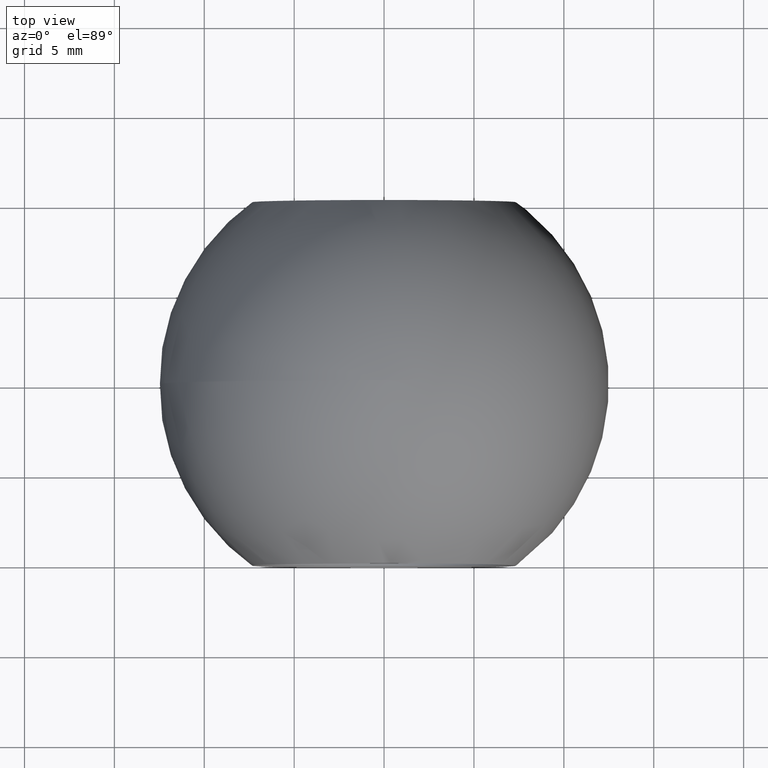
[diagram: clean part render]
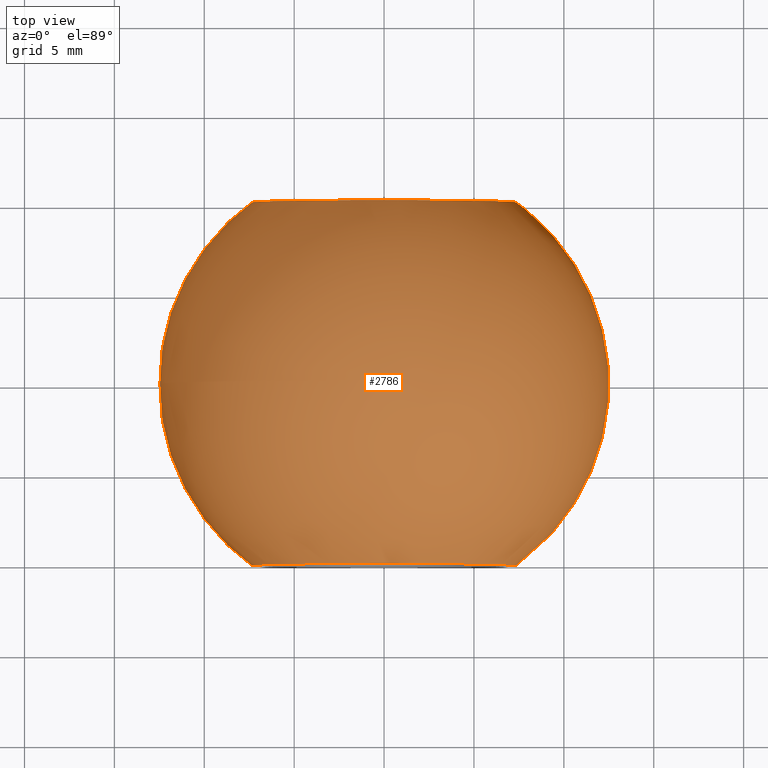
[diagram: same view with one face highlighted and labeled with its STEP entity id]
A machine part, top view. The second image highlights one B-rep face of the part: STEP entity #2786.
In plain terms, the highlighted spherical surface has radius 12.5 mm.
Its self-contained STEP definition (entity closure, byte-faithful):
#438 = EDGE_LOOP ( 'NONE', ( #3670 ) ) ;
#687 = CARTESIAN_POINT ( 'NONE',  ( 0.0000000000000000000, 0.0000000000000000000, 0.0000000000000000000 ) ) ;
#876 = EDGE_LOOP ( 'NONE', ( #1724 ) ) ;
#1336 = CIRCLE ( 'NONE', #5523, 7.352588916478398900 ) ;
#1444 = AXIS2_PLACEMENT_3D ( 'NONE', #687, #9103, #2141 ) ;
#1454 = CARTESIAN_POINT ( 'NONE',  ( 0.0000000000000000000, 10.10887907857636300, 0.0000000000000000000 ) ) ;
#1657 = CARTESIAN_POINT ( 'NONE',  ( 0.0000000000000000000, -10.10887907857636800, 0.0000000000000000000 ) ) ;
#1724 = ORIENTED_EDGE ( 'NONE', *, *, #6062, .T. ) ;
#1773 = CARTESIAN_POINT ( 'NONE',  ( 0.0000000000000000000, 10.10887907857636300, -7.352588916478404200 ) ) ;
#2141 = DIRECTION ( 'NONE',  ( 1.000000000000000000, 0.0000000000000000000, 0.0000000000000000000 ) ) ;
#2427 = DIRECTION ( 'NONE',  ( 0.0000000000000000000, 1.000000000000000000, 0.0000000000000000000 ) ) ;
#2786 = ADVANCED_FACE ( 'NONE', ( #9904, #9657 ), #7632, .T. ) ;
#2832 = VERTEX_POINT ( 'NONE', #7195 ) ;
#3045 = DIRECTION ( 'NONE',  ( 0.0000000000000000000, 0.0000000000000000000, 1.000000000000000000 ) ) ;
#3670 = ORIENTED_EDGE ( 'NONE', *, *, #5893, .T. ) ;
#3984 = CIRCLE ( 'NONE', #7086, 7.352588916478404200 ) ;
#5213 = DIRECTION ( 'NONE',  ( 0.0000000000000000000, 0.0000000000000000000, -1.000000000000000000 ) ) ;
#5523 = AXIS2_PLACEMENT_3D ( 'NONE', #1657, #2427, #3045 ) ;
#5893 = EDGE_CURVE ( 'NONE', #8528, #8528, #3984, .T. ) ;
#6062 = EDGE_CURVE ( 'NONE', #2832, #2832, #1336, .T. ) ;
#6804 = DIRECTION ( 'NONE',  ( -0.0000000000000000000, -1.000000000000000000, -0.0000000000000000000 ) ) ;
#7086 = AXIS2_PLACEMENT_3D ( 'NONE', #1454, #6804, #5213 ) ;
#7195 = CARTESIAN_POINT ( 'NONE',  ( 0.0000000000000000000, -10.10887907857636800, 7.352588916478398900 ) ) ;
#7632 = SPHERICAL_SURFACE ( 'NONE', #1444, 12.49999999999999800 ) ;
#8528 = VERTEX_POINT ( 'NONE', #1773 ) ;
#9103 = DIRECTION ( 'NONE',  ( 0.0000000000000000000, 0.0000000000000000000, -1.000000000000000000 ) ) ;
#9657 = FACE_OUTER_BOUND ( 'NONE', #876, .T. ) ;
#9904 = FACE_OUTER_BOUND ( 'NONE', #438, .T. ) ;